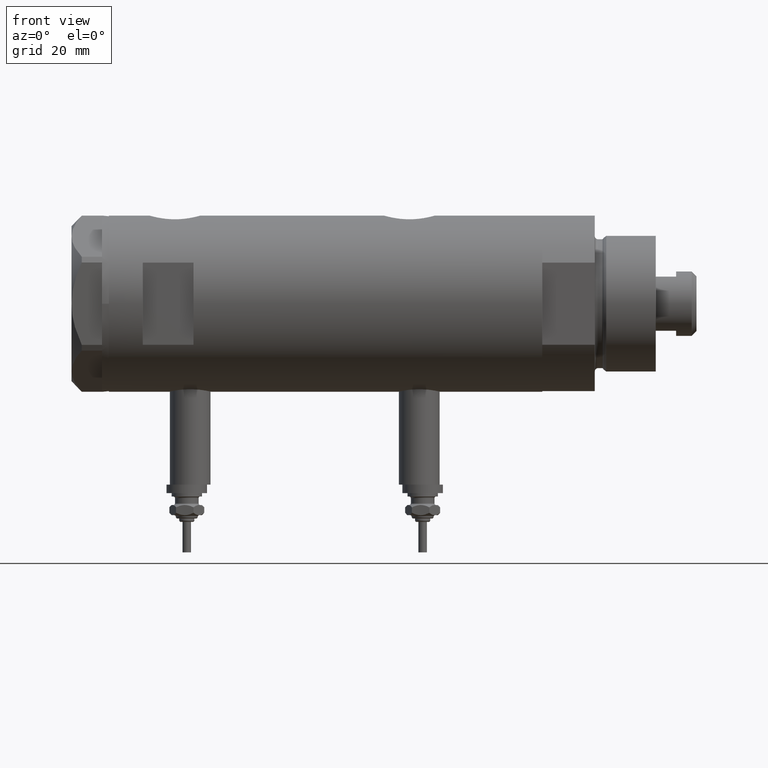
[diagram: clean part render]
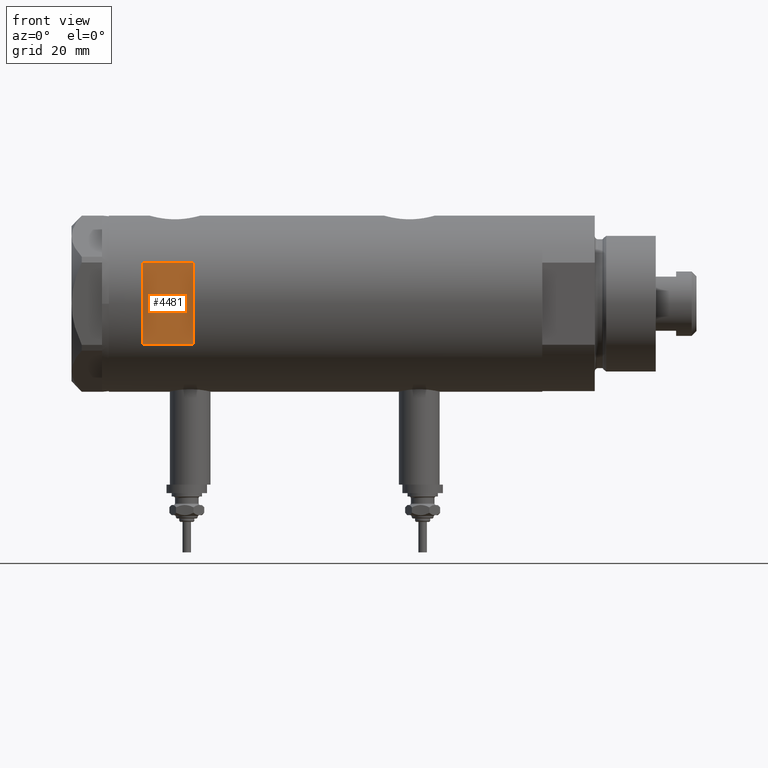
[diagram: same view with one face highlighted and labeled with its STEP entity id]
A machine part, front view. The second image highlights one B-rep face of the part: STEP entity #4481.
In plain terms, the highlighted planar face has unit normal (-0, 1, 0).
Its self-contained STEP definition (entity closure, byte-faithful):
#435 = CARTESIAN_POINT ( 'NONE',  ( -12.12435565298214080, -23.00000000000000355, 53.94999999999999574 ) ) ;
#652 = DIRECTION ( 'NONE',  ( 1.000000000000000000, -0.000000000000000000, -0.000000000000000000 ) ) ;
#688 = CARTESIAN_POINT ( 'NONE',  ( -26.00000000000000355, -23.00000000000000355, 38.94999999999999574 ) ) ;
#699 = FACE_OUTER_BOUND ( 'NONE', #5990, .T. ) ;
#768 = ORIENTED_EDGE ( 'NONE', *, *, #5197, .T. ) ;
#901 = AXIS2_PLACEMENT_3D ( 'NONE', #2996, #5061, #4517 ) ;
#1353 = ORIENTED_EDGE ( 'NONE', *, *, #1579, .T. ) ;
#1509 = LINE ( 'NONE', #3445, #1986 ) ;
#1579 = EDGE_CURVE ( 'NONE', #6095, #2695, #1509, .T. ) ;
#1844 = DIRECTION ( 'NONE',  ( 0.000000000000000000, 0.000000000000000000, 1.000000000000000000 ) ) ;
#1986 = VECTOR ( 'NONE', #5397, 1000.000000000000000 ) ;
#2088 = CARTESIAN_POINT ( 'NONE',  ( 12.12435565298214080, -23.00000000000000355, 53.94999999999999574 ) ) ;
#2399 = ORIENTED_EDGE ( 'NONE', *, *, #2865, .F. ) ;
#2544 = VERTEX_POINT ( 'NONE', #2088 ) ;
#2695 = VERTEX_POINT ( 'NONE', #3819 ) ;
#2838 = LINE ( 'NONE', #6264, #2927 ) ;
#2865 = EDGE_CURVE ( 'NONE', #6095, #2544, #4590, .T. ) ;
#2927 = VECTOR ( 'NONE', #1844, 1000.000000000000000 ) ;
#2996 = CARTESIAN_POINT ( 'NONE',  ( -26.00000000000000355, -23.00000000000000355, 53.94999999999999574 ) ) ;
#3139 = VECTOR ( 'NONE', #652, 1000.000000000000000 ) ;
#3408 = ORIENTED_EDGE ( 'NONE', *, *, #5814, .T. ) ;
#3445 = CARTESIAN_POINT ( 'NONE',  ( -12.12435565298214080, -23.00000000000000355, -63.95000000000000995 ) ) ;
#3819 = CARTESIAN_POINT ( 'NONE',  ( -12.12435565298214080, -23.00000000000000355, 38.94999999999999574 ) ) ;
#4481 = ADVANCED_FACE ( 'NONE', ( #699 ), #6021, .F. ) ;
#4517 = DIRECTION ( 'NONE',  ( 0.000000000000000000, -0.000000000000000000, 1.000000000000000000 ) ) ;
#4542 = LINE ( 'NONE', #688, #3139 ) ;
#4590 = LINE ( 'NONE', #5655, #4734 ) ;
#4734 = VECTOR ( 'NONE', #5555, 1000.000000000000000 ) ;
#5061 = DIRECTION ( 'NONE',  ( 0.000000000000000000, 1.000000000000000000, 0.000000000000000000 ) ) ;
#5197 = EDGE_CURVE ( 'NONE', #5950, #2544, #2838, .T. ) ;
#5397 = DIRECTION ( 'NONE',  ( -0.000000000000000000, -0.000000000000000000, -1.000000000000000000 ) ) ;
#5555 = DIRECTION ( 'NONE',  ( 1.000000000000000000, -0.000000000000000000, -0.000000000000000000 ) ) ;
#5655 = CARTESIAN_POINT ( 'NONE',  ( -26.00000000000000355, -23.00000000000000355, 53.94999999999999574 ) ) ;
#5814 = EDGE_CURVE ( 'NONE', #2695, #5950, #4542, .T. ) ;
#5950 = VERTEX_POINT ( 'NONE', #6116 ) ;
#5990 = EDGE_LOOP ( 'NONE', ( #1353, #3408, #768, #2399 ) ) ;
#6021 = PLANE ( 'NONE',  #901 ) ;
#6095 = VERTEX_POINT ( 'NONE', #435 ) ;
#6116 = CARTESIAN_POINT ( 'NONE',  ( 12.12435565298214080, -23.00000000000000355, 38.94999999999999574 ) ) ;
#6264 = CARTESIAN_POINT ( 'NONE',  ( 12.12435565298214080, -23.00000000000000355, -63.95000000000000995 ) ) ;